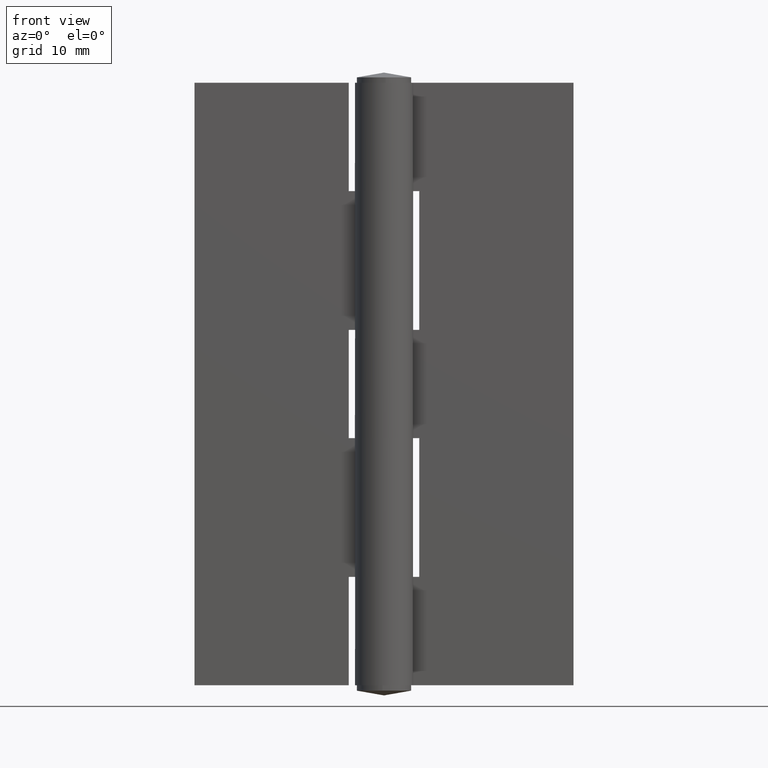
[diagram: clean part render]
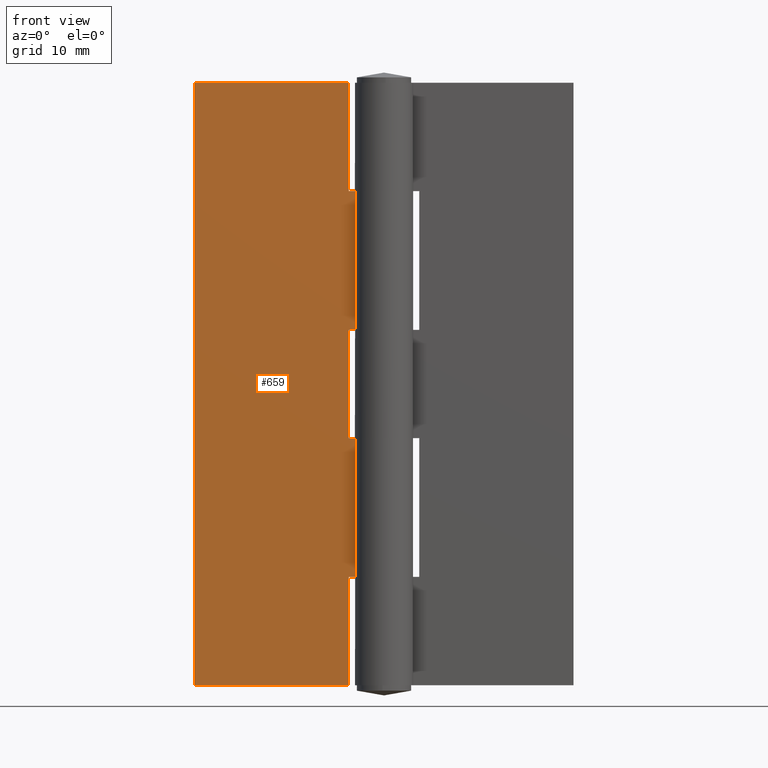
[diagram: same view with one face highlighted and labeled with its STEP entity id]
A machine part, front view. The second image highlights one B-rep face of the part: STEP entity #659.
In plain terms, the highlighted face is a freeform B-spline surface patch.
Its self-contained STEP definition (entity closure, byte-faithful):
#460=CARTESIAN_POINT('',(-2.457132475061225,0.850000000000023,16.0));
#461=VERTEX_POINT('',#460);
#503=CARTESIAN_POINT('',(-2.457132475061225,0.850000000000023,36.500000000000000));
#504=VERTEX_POINT('',#503);
#540=CARTESIAN_POINT('',(-2.457132475061225,0.850000000000023,36.500000000000000));
#541=CARTESIAN_POINT('',(-2.457132475061225,0.850000000000023,16.0));
#542=QUASI_UNIFORM_CURVE('',1,(#540,#541),.UNSPECIFIED.,.F.,.U.);
#543=EDGE_CURVE('',#504,#461,#542,.T.);
#576=CARTESIAN_POINT('',(-29.275866183363661,0.850000000000023,93.445549827500756));
#577=CARTESIAN_POINT('',(-29.275866183363661,0.850000000000023,-4.445552214666751));
#578=CARTESIAN_POINT('',(-1.181265606584472,0.850000000000023,93.445549827500756));
#579=CARTESIAN_POINT('',(-1.181265606584472,0.850000000000023,-4.445552214666751));
#580=B_SPLINE_SURFACE_WITH_KNOTS('',1,1,((#576,#578),(#577,#579)),.UNSPECIFIED.,.F.,.F.,.U.,(2,2),(2,2),(0.0,97.891102042167503),(0.0,28.094600576779190),.UNSPECIFIED.);
#581=CARTESIAN_POINT('',(-2.457132475061225,0.850000000000023,73.0));
#582=VERTEX_POINT('',#581);
#583=CARTESIAN_POINT('',(-5.199996999999880,0.850000000000017,73.0));
#584=VERTEX_POINT('',#583);
#585=CARTESIAN_POINT('',(-2.457132475061225,0.850000000000023,73.0));
#586=CARTESIAN_POINT('',(-5.199996999999880,0.850000000000017,73.0));
#587=QUASI_UNIFORM_CURVE('',1,(#585,#586),.UNSPECIFIED.,.F.,.U.);
#588=EDGE_CURVE('',#582,#584,#587,.T.);
#589=ORIENTED_EDGE('',*,*,#588,.T.);
#590=CARTESIAN_POINT('',(-5.199996999999880,0.850000000000017,89.0));
#591=VERTEX_POINT('',#590);
#592=CARTESIAN_POINT('',(-5.199996999999880,0.850000000000017,73.0));
#593=CARTESIAN_POINT('',(-5.199996999999880,0.850000000000017,89.0));
#594=QUASI_UNIFORM_CURVE('',1,(#592,#593),.UNSPECIFIED.,.F.,.U.);
#595=EDGE_CURVE('',#584,#591,#594,.T.);
#596=ORIENTED_EDGE('',*,*,#595,.T.);
#597=CARTESIAN_POINT('',(-28.0,0.850000000000023,89.0));
#598=VERTEX_POINT('',#597);
#599=CARTESIAN_POINT('',(-5.199996999999880,0.850000000000017,89.0));
#600=CARTESIAN_POINT('',(-28.0,0.850000000000023,89.0));
#601=QUASI_UNIFORM_CURVE('',1,(#599,#600),.UNSPECIFIED.,.F.,.U.);
#602=EDGE_CURVE('',#591,#598,#601,.T.);
#603=ORIENTED_EDGE('',*,*,#602,.T.);
#604=CARTESIAN_POINT('',(-28.0,0.850000000000023,0.0));
#605=VERTEX_POINT('',#604);
#606=CARTESIAN_POINT('',(-28.0,0.850000000000023,89.0));
#607=CARTESIAN_POINT('',(-28.0,0.850000000000023,0.0));
#608=QUASI_UNIFORM_CURVE('',1,(#606,#607),.UNSPECIFIED.,.F.,.U.);
#609=EDGE_CURVE('',#598,#605,#608,.T.);
#610=ORIENTED_EDGE('',*,*,#609,.T.);
#611=CARTESIAN_POINT('',(-5.199996999999880,0.850000000000023,0.0));
#612=VERTEX_POINT('',#611);
#613=CARTESIAN_POINT('',(-5.199996999999880,0.850000000000023,0.0));
#614=CARTESIAN_POINT('',(-28.0,0.850000000000023,0.0));
#615=QUASI_UNIFORM_CURVE('',1,(#613,#614),.UNSPECIFIED.,.F.,.U.);
#616=EDGE_CURVE('',#612,#605,#615,.T.);
#617=ORIENTED_EDGE('',*,*,#616,.F.);
#618=CARTESIAN_POINT('',(-5.199996999999880,0.850000000000017,15.999999999999750));
#619=VERTEX_POINT('',#618);
#620=CARTESIAN_POINT('',(-5.199996999999880,0.850000000000023,0.0));
#621=CARTESIAN_POINT('',(-5.199996999999880,0.850000000000017,15.999999999999750));
#622=QUASI_UNIFORM_CURVE('',1,(#620,#621),.UNSPECIFIED.,.F.,.U.);
#623=EDGE_CURVE('',#612,#619,#622,.T.);
#624=ORIENTED_EDGE('',*,*,#623,.T.);
#625=CARTESIAN_POINT('',(-5.199996999999880,0.850000000000017,15.999999999999750));
#626=CARTESIAN_POINT('',(-2.457132475061225,0.850000000000023,16.0));
#627=QUASI_UNIFORM_CURVE('',1,(#625,#626),.UNSPECIFIED.,.F.,.U.);
#628=EDGE_CURVE('',#619,#461,#627,.T.);
#629=ORIENTED_EDGE('',*,*,#628,.T.);
#630=ORIENTED_EDGE('',*,*,#543,.F.);
#631=CARTESIAN_POINT('',(-5.199996999999880,0.850000000000017,36.500000000000000));
#632=VERTEX_POINT('',#631);
#633=CARTESIAN_POINT('',(-5.199996999999880,0.850000000000017,36.500000000000000));
#634=CARTESIAN_POINT('',(-2.457132475061225,0.850000000000023,36.500000000000000));
#635=QUASI_UNIFORM_CURVE('',1,(#633,#634),.UNSPECIFIED.,.F.,.U.);
#636=EDGE_CURVE('',#632,#504,#635,.T.);
#637=ORIENTED_EDGE('',*,*,#636,.F.);
#638=CARTESIAN_POINT('',(-5.199996999999880,0.850000000000017,52.500000000000000));
#639=VERTEX_POINT('',#638);
#640=CARTESIAN_POINT('',(-5.199996999999880,0.850000000000017,52.500000000000000));
#641=CARTESIAN_POINT('',(-5.199996999999880,0.850000000000017,36.500000000000000));
#642=QUASI_UNIFORM_CURVE('',1,(#640,#641),.UNSPECIFIED.,.F.,.U.);
#643=EDGE_CURVE('',#639,#632,#642,.T.);
#644=ORIENTED_EDGE('',*,*,#643,.F.);
#645=CARTESIAN_POINT('',(-2.457132475061225,0.850000000000023,52.500000000000000));
#646=VERTEX_POINT('',#645);
#647=CARTESIAN_POINT('',(-2.457132475061225,0.850000000000023,52.500000000000000));
#648=CARTESIAN_POINT('',(-5.199996999999880,0.850000000000017,52.500000000000000));
#649=QUASI_UNIFORM_CURVE('',1,(#647,#648),.UNSPECIFIED.,.F.,.U.);
#650=EDGE_CURVE('',#646,#639,#649,.T.);
#651=ORIENTED_EDGE('',*,*,#650,.F.);
#652=CARTESIAN_POINT('',(-2.457132475061225,0.850000000000023,73.0));
#653=CARTESIAN_POINT('',(-2.457132475061225,0.850000000000023,52.500000000000000));
#654=QUASI_UNIFORM_CURVE('',1,(#652,#653),.UNSPECIFIED.,.F.,.U.);
#655=EDGE_CURVE('',#582,#646,#654,.T.);
#656=ORIENTED_EDGE('',*,*,#655,.F.);
#657=EDGE_LOOP('',(#589,#596,#603,#610,#617,#624,#629,#630,#637,#644,#651,#656));
#658=FACE_OUTER_BOUND('',#657,.T.);
#659=ADVANCED_FACE('',(#658),#580,.T.);